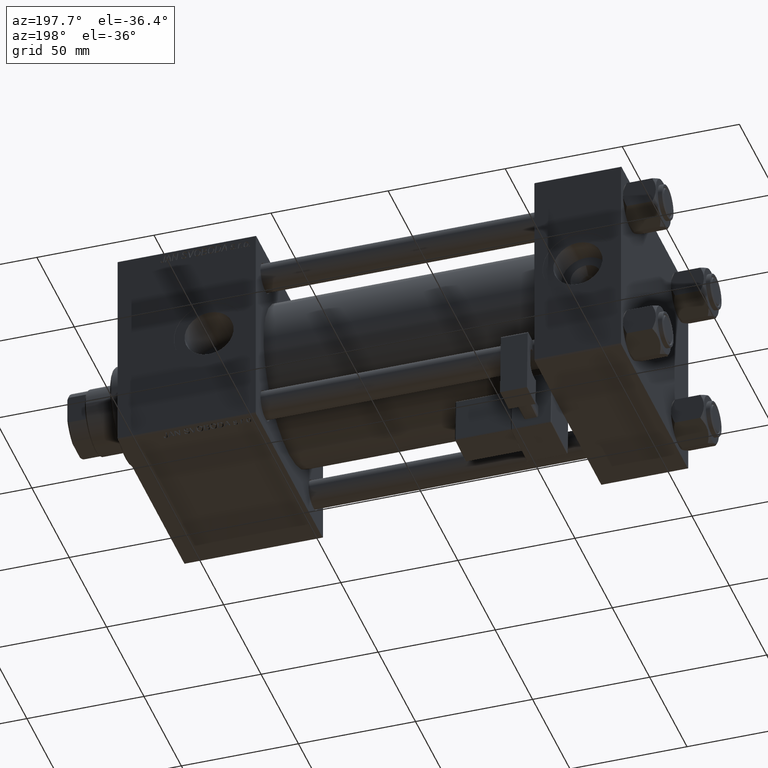
[diagram: clean part render]
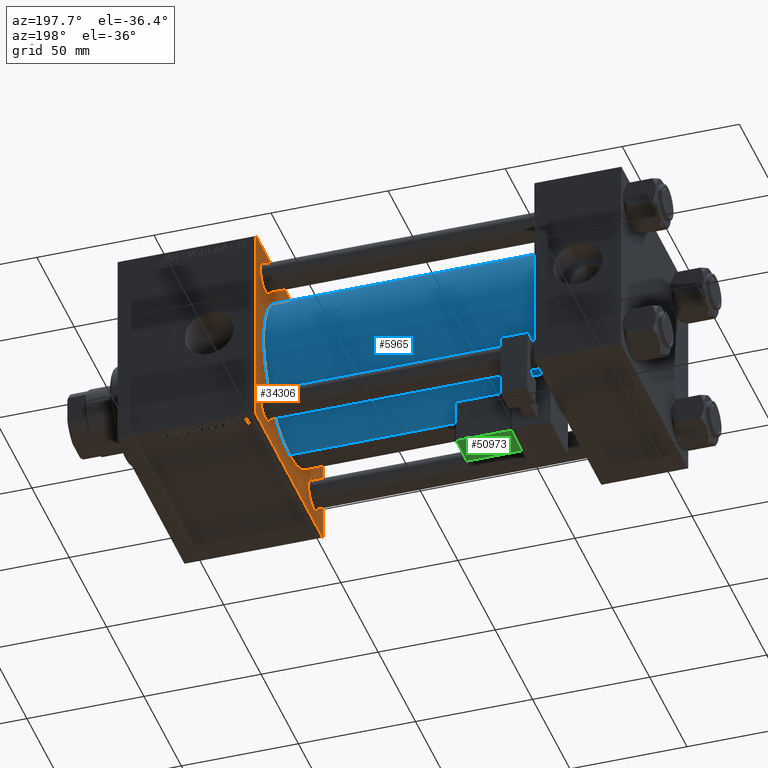
[diagram: same view with three faces highlighted in distinct colors, each labeled with its STEP entity id]
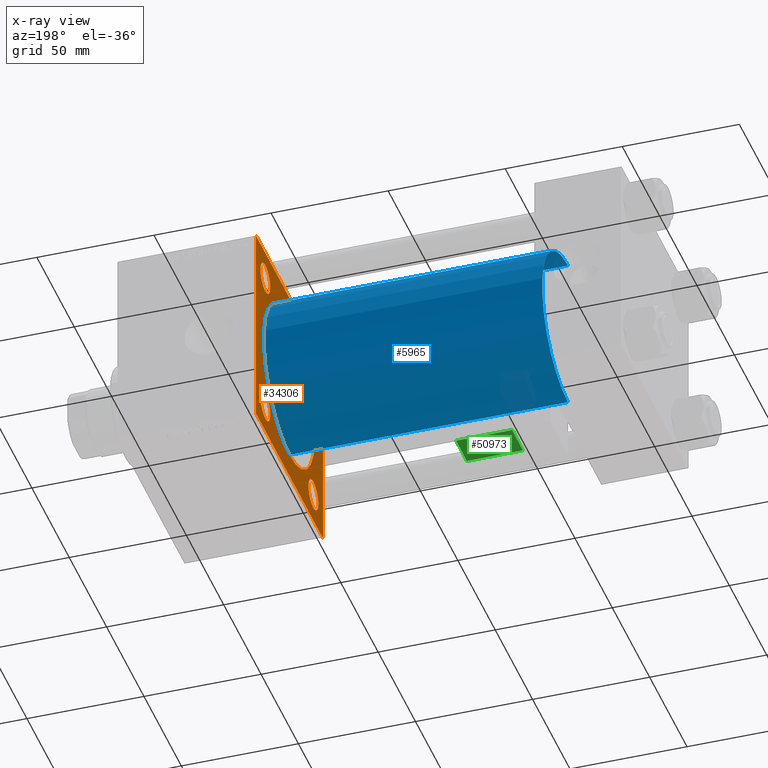
[diagram: x-ray of the same camera — body ghosted, the three highlighted faces saturated]
A machine part, auxiliary view with three faces highlighted in distinct colors.
The next image is the same camera in x-ray (body ghosted, the three faces saturated) — at least one of them is partly hidden behind the body in this view.
Their STEP definitions:

[orange] entity #34306 — the highlighted planar face has unit normal (-1, 0, 0).
#475 = ORIENTED_EDGE ( 'NONE', *, *, #46076, .T. ) ;
#511 = EDGE_CURVE ( 'NONE', #21452, #7140, #11884, .T. ) ;
#803 = DIRECTION ( 'NONE',  ( 1.000000000000000000, 0.000000000000000000, 0.000000000000000000 ) ) ;
#1548 = DIRECTION ( 'NONE',  ( 1.000000000000000000, 0.000000000000000000, 0.000000000000000000 ) ) ;
#1958 = DIRECTION ( 'NONE',  ( 1.000000000000000000, 0.000000000000000000, 0.000000000000000000 ) ) ;
#1994 = ORIENTED_EDGE ( 'NONE', *, *, #30781, .T. ) ;
#2411 = DIRECTION ( 'NONE',  ( 1.000000000000000000, 0.000000000000000000, 0.000000000000000000 ) ) ;
#2585 = ORIENTED_EDGE ( 'NONE', *, *, #33579, .F. ) ;
#2770 = VERTEX_POINT ( 'NONE', #16995 ) ;
#2797 = EDGE_CURVE ( 'NONE', #32809, #31964, #42986, .T. ) ;
#2946 = DIRECTION ( 'NONE',  ( 1.000000000000000000, 0.000000000000000000, 0.000000000000000000 ) ) ;
#3483 = EDGE_LOOP ( 'NONE', ( #50050, #14578 ) ) ;
#3533 = VECTOR ( 'NONE', #31936, 999.9999999999998863 ) ;
#3939 = VECTOR ( 'NONE', #8091, 1000.000000000000114 ) ;
#3946 = ORIENTED_EDGE ( 'NONE', *, *, #13535, .T. ) ;
#4301 = VERTEX_POINT ( 'NONE', #35283 ) ;
#4613 = EDGE_CURVE ( 'NONE', #4301, #11298, #45784, .T. ) ;
#4754 = AXIS2_PLACEMENT_3D ( 'NONE', #27512, #39437, #39971 ) ;
#5135 = CARTESIAN_POINT ( 'NONE',  ( 156.0000000000000000, -32.14999999999997726, -32.15000000000001279 ) ) ;
#5318 = FACE_BOUND ( 'NONE', #5776, .T. ) ;
#5767 = ORIENTED_EDGE ( 'NONE', *, *, #12232, .T. ) ;
#5776 = EDGE_LOOP ( 'NONE', ( #40036, #42409 ) ) ;
#6012 = DIRECTION ( 'NONE',  ( 0.000000000000000000, 0.000000000000000000, 1.000000000000000000 ) ) ;
#6296 = CARTESIAN_POINT ( 'NONE',  ( 156.0000000000000000, -44.75000000000001421, 44.75000000000001421 ) ) ;
#6815 = VERTEX_POINT ( 'NONE', #44533 ) ;
#6889 = AXIS2_PLACEMENT_3D ( 'NONE', #12900, #1548, #50820 ) ;
#7140 = VERTEX_POINT ( 'NONE', #38807 ) ;
#7255 = EDGE_CURVE ( 'NONE', #31964, #32809, #44863, .T. ) ;
#7719 = PLANE ( 'NONE',  #4754 ) ;
#7823 = VERTEX_POINT ( 'NONE', #39343 ) ;
#8091 = DIRECTION ( 'NONE',  ( 0.000000000000000000, 0.7071067811865474617, -0.7071067811865474617 ) ) ;
#8144 = AXIS2_PLACEMENT_3D ( 'NONE', #5135, #803, #18138 ) ;
#8275 = EDGE_CURVE ( 'NONE', #11040, #24836, #8560, .T. ) ;
#8560 = CIRCLE ( 'NONE', #36254, 6.500000000000005329 ) ;
#9942 = DIRECTION ( 'NONE',  ( 0.000000000000000000, 0.000000000000000000, 1.000000000000000000 ) ) ;
#10528 = CARTESIAN_POINT ( 'NONE',  ( 156.0000000000000000, 45.00000000000001421, 45.00000000000000000 ) ) ;
#10720 = FACE_BOUND ( 'NONE', #21532, .T. ) ;
#11040 = VERTEX_POINT ( 'NONE', #51154 ) ;
#11298 = VERTEX_POINT ( 'NONE', #41015 ) ;
#11884 = LINE ( 'NONE', #28932, #3939 ) ;
#12125 = EDGE_CURVE ( 'NONE', #42503, #7823, #46653, .T. ) ;
#12232 = EDGE_CURVE ( 'NONE', #33592, #15785, #31965, .T. ) ;
#12382 = VERTEX_POINT ( 'NONE', #18328 ) ;
#12900 = CARTESIAN_POINT ( 'NONE',  ( 156.0000000000000000, 32.14999999999999147, 32.15000000000000568 ) ) ;
#13535 = EDGE_CURVE ( 'NONE', #6815, #51805, #43374, .T. ) ;
#13998 = CARTESIAN_POINT ( 'NONE',  ( 156.0000000000000000, -32.14999999999997726, -32.15000000000001279 ) ) ;
#14233 = EDGE_LOOP ( 'NONE', ( #16465, #475, #2585, #3946, #15180, #48130, #35888, #25734 ) ) ;
#14477 = ORIENTED_EDGE ( 'NONE', *, *, #29285, .T. ) ;
#14578 = ORIENTED_EDGE ( 'NONE', *, *, #12125, .T. ) ;
#14612 = AXIS2_PLACEMENT_3D ( 'NONE', #36598, #44981, #19820 ) ;
#15180 = ORIENTED_EDGE ( 'NONE', *, *, #24237, .F. ) ;
#15614 = CARTESIAN_POINT ( 'NONE',  ( 156.0000000000000000, -2.602085213965210642E-15, 0.000000000000000000 ) ) ;
#15785 = VERTEX_POINT ( 'NONE', #45432 ) ;
#15886 = CIRCLE ( 'NONE', #46151, 6.500000000000005329 ) ;
#16465 = ORIENTED_EDGE ( 'NONE', *, *, #4613, .T. ) ;
#16638 = VECTOR ( 'NONE', #18985, 1000.000000000000114 ) ;
#16995 = CARTESIAN_POINT ( 'NONE',  ( 156.0000000000000000, -32.14999999999997726, -38.65000000000001990 ) ) ;
#17813 = CARTESIAN_POINT ( 'NONE',  ( 156.0000000000000000, -44.99999999999999289, -44.49999999999997158 ) ) ;
#18138 = DIRECTION ( 'NONE',  ( 0.000000000000000000, 0.000000000000000000, 1.000000000000000000 ) ) ;
#18328 = CARTESIAN_POINT ( 'NONE',  ( 156.0000000000000000, -32.14999999999997726, -25.65000000000000568 ) ) ;
#18392 = DIRECTION ( 'NONE',  ( 0.000000000000000000, 0.000000000000000000, 1.000000000000000000 ) ) ;
#18985 = DIRECTION ( 'NONE',  ( -0.000000000000000000, -0.7071067811865474617, -0.7071067811865474617 ) ) ;
#19214 = CARTESIAN_POINT ( 'NONE',  ( 156.0000000000000000, 45.00000000000001421, 45.00000000000000000 ) ) ;
#19415 = DIRECTION ( 'NONE',  ( 1.000000000000000000, 0.000000000000000000, 0.000000000000000000 ) ) ;
#19743 = LINE ( 'NONE', #19214, #47761 ) ;
#19820 = DIRECTION ( 'NONE',  ( 0.000000000000000000, 0.000000000000000000, -1.000000000000000000 ) ) ;
#20457 = VERTEX_POINT ( 'NONE', #17813 ) ;
#20520 = CARTESIAN_POINT ( 'NONE',  ( 156.0000000000000000, 1.622946243093158675E-15, -34.50000000000000000 ) ) ;
#20799 = CARTESIAN_POINT ( 'NONE',  ( 156.0000000000000000, -32.14999999999997726, 32.15000000000001279 ) ) ;
#21452 = VERTEX_POINT ( 'NONE', #29485 ) ;
#21532 = EDGE_LOOP ( 'NONE', ( #27242, #51202 ) ) ;
#21883 = CIRCLE ( 'NONE', #45216, 6.500000000000005329 ) ;
#22736 = LINE ( 'NONE', #10528, #52095 ) ;
#22942 = VECTOR ( 'NONE', #44738, 1000.000000000000000 ) ;
#23683 = AXIS2_PLACEMENT_3D ( 'NONE', #47430, #1958, #30088 ) ;
#24237 = EDGE_CURVE ( 'NONE', #21452, #51805, #22736, .T. ) ;
#24836 = VERTEX_POINT ( 'NONE', #52373 ) ;
#25212 = DIRECTION ( 'NONE',  ( 0.000000000000000000, -1.000000000000000000, 0.000000000000000000 ) ) ;
#25734 = ORIENTED_EDGE ( 'NONE', *, *, #29346, .T. ) ;
#26526 = DIRECTION ( 'NONE',  ( 0.000000000000000000, -1.000000000000000000, -1.541976423090495140E-16 ) ) ;
#27021 = VERTEX_POINT ( 'NONE', #49799 ) ;
#27088 = LINE ( 'NONE', #27350, #3533 ) ;
#27242 = ORIENTED_EDGE ( 'NONE', *, *, #2797, .T. ) ;
#27350 = CARTESIAN_POINT ( 'NONE',  ( 156.0000000000000000, -44.74999999999968736, -44.75000000000031264 ) ) ;
#27512 = CARTESIAN_POINT ( 'NONE',  ( 156.0000000000000000, 0.000000000000000000, 0.000000000000000000 ) ) ;
#27544 = DIRECTION ( 'NONE',  ( 0.000000000000000000, 0.000000000000000000, -1.000000000000000000 ) ) ;
#28231 = CARTESIAN_POINT ( 'NONE',  ( 156.0000000000000000, -45.00000000000000000, 44.99999999999998579 ) ) ;
#28932 = CARTESIAN_POINT ( 'NONE',  ( 156.0000000000000000, 44.75000000000001421, 44.75000000000001421 ) ) ;
#29180 = VECTOR ( 'NONE', #30922, 1000.000000000000114 ) ;
#29285 = EDGE_CURVE ( 'NONE', #15785, #33592, #30501, .T. ) ;
#29346 = EDGE_CURVE ( 'NONE', #27021, #4301, #50680, .T. ) ;
#29485 = CARTESIAN_POINT ( 'NONE',  ( 156.0000000000000000, 44.50000000000001421, 45.00000000000000000 ) ) ;
#29819 = CARTESIAN_POINT ( 'NONE',  ( 156.0000000000000000, 32.14999999999999147, 25.65000000000000213 ) ) ;
#29996 = DIRECTION ( 'NONE',  ( 0.000000000000000000, 0.000000000000000000, 1.000000000000000000 ) ) ;
#30088 = DIRECTION ( 'NONE',  ( 0.000000000000000000, 0.000000000000000000, 1.000000000000000000 ) ) ;
#30501 = CIRCLE ( 'NONE', #53007, 6.499999999999999112 ) ;
#30781 = EDGE_CURVE ( 'NONE', #12382, #2770, #15886, .T. ) ;
#30922 = DIRECTION ( 'NONE',  ( -0.000000000000000000, 0.7071067811865474617, 0.7071067811865474617 ) ) ;
#31753 = EDGE_CURVE ( 'NONE', #2770, #12382, #52278, .T. ) ;
#31936 = DIRECTION ( 'NONE',  ( 0.000000000000000000, -0.7071067811865525687, 0.7071067811865425767 ) ) ;
#31964 = VERTEX_POINT ( 'NONE', #20520 ) ;
#31965 = CIRCLE ( 'NONE', #6889, 6.499999999999999112 ) ;
#32020 = EDGE_LOOP ( 'NONE', ( #1994, #46523 ) ) ;
#32809 = VERTEX_POINT ( 'NONE', #40612 ) ;
#33579 = EDGE_CURVE ( 'NONE', #6815, #20457, #48816, .T. ) ;
#33592 = VERTEX_POINT ( 'NONE', #29819 ) ;
#33599 = CARTESIAN_POINT ( 'NONE',  ( 156.0000000000000000, 45.00000000000001421, -45.00000000000000000 ) ) ;
#34306 = ADVANCED_FACE ( 'NONE', ( #5318, #38341, #35368, #44556, #10720, #48623 ), #7719, .T. ) ;
#34983 = DIRECTION ( 'NONE',  ( 1.000000000000000000, 0.000000000000000000, 0.000000000000000000 ) ) ;
#35257 = VECTOR ( 'NONE', #25212, 1000.000000000000000 ) ;
#35283 = CARTESIAN_POINT ( 'NONE',  ( 156.0000000000000000, 44.50000000000001421, -45.00000000000000000 ) ) ;
#35368 = FACE_BOUND ( 'NONE', #3483, .T. ) ;
#35888 = ORIENTED_EDGE ( 'NONE', *, *, #46105, .T. ) ;
#36235 = DIRECTION ( 'NONE',  ( 0.000000000000000000, 0.000000000000000000, 1.000000000000000000 ) ) ;
#36254 = AXIS2_PLACEMENT_3D ( 'NONE', #20799, #37842, #29996 ) ;
#36598 = CARTESIAN_POINT ( 'NONE',  ( 156.0000000000000000, -2.602085213965210642E-15, 0.000000000000000000 ) ) ;
#37842 = DIRECTION ( 'NONE',  ( 1.000000000000000000, 0.000000000000000000, 0.000000000000000000 ) ) ;
#37972 = AXIS2_PLACEMENT_3D ( 'NONE', #52237, #2946, #36235 ) ;
#38341 = FACE_BOUND ( 'NONE', #46065, .T. ) ;
#38533 = CARTESIAN_POINT ( 'NONE',  ( 156.0000000000000000, 32.14999999999999147, -38.65000000000001279 ) ) ;
#38807 = CARTESIAN_POINT ( 'NONE',  ( 156.0000000000000000, 45.00000000000001421, 44.50000000000000000 ) ) ;
#39343 = CARTESIAN_POINT ( 'NONE',  ( 156.0000000000000000, 32.14999999999999147, -25.64999999999999858 ) ) ;
#39437 = DIRECTION ( 'NONE',  ( -1.000000000000000000, 0.000000000000000000, -0.000000000000000000 ) ) ;
#39971 = DIRECTION ( 'NONE',  ( -0.000000000000000000, 0.000000000000000000, 1.000000000000000000 ) ) ;
#40036 = ORIENTED_EDGE ( 'NONE', *, *, #8275, .T. ) ;
#40612 = CARTESIAN_POINT ( 'NONE',  ( 156.0000000000000000, -2.602085213965210642E-15, 34.50000000000000000 ) ) ;
#40626 = CARTESIAN_POINT ( 'NONE',  ( 156.0000000000000000, 44.75000000000000000, -44.75000000000000000 ) ) ;
#41015 = CARTESIAN_POINT ( 'NONE',  ( 156.0000000000000000, -44.49999999999995737, -45.00000000000000000 ) ) ;
#42156 = DIRECTION ( 'NONE',  ( 1.000000000000000000, 0.000000000000000000, 0.000000000000000000 ) ) ;
#42409 = ORIENTED_EDGE ( 'NONE', *, *, #52678, .T. ) ;
#42503 = VERTEX_POINT ( 'NONE', #38533 ) ;
#42706 = CARTESIAN_POINT ( 'NONE',  ( 156.0000000000000000, -44.50000000000000000, 44.99999999999998579 ) ) ;
#42986 = CIRCLE ( 'NONE', #46419, 34.50000000000000000 ) ;
#43374 = LINE ( 'NONE', #6296, #29180 ) ;
#43580 = CIRCLE ( 'NONE', #23683, 6.500000000000005329 ) ;
#43589 = DIRECTION ( 'NONE',  ( 0.000000000000000000, 0.000000000000000000, -1.000000000000000000 ) ) ;
#44533 = CARTESIAN_POINT ( 'NONE',  ( 156.0000000000000000, -45.00000000000000000, 44.50000000000001421 ) ) ;
#44556 = FACE_BOUND ( 'NONE', #32020, .T. ) ;
#44738 = DIRECTION ( 'NONE',  ( 0.000000000000000000, 7.709882115452478166E-17, -1.000000000000000000 ) ) ;
#44863 = CIRCLE ( 'NONE', #14612, 34.50000000000000000 ) ;
#44981 = DIRECTION ( 'NONE',  ( 1.000000000000000000, 0.000000000000000000, 0.000000000000000000 ) ) ;
#45216 = AXIS2_PLACEMENT_3D ( 'NONE', #51701, #2411, #18392 ) ;
#45432 = CARTESIAN_POINT ( 'NONE',  ( 156.0000000000000000, 32.14999999999999147, 38.65000000000001279 ) ) ;
#45784 = LINE ( 'NONE', #33599, #35257 ) ;
#46065 = EDGE_LOOP ( 'NONE', ( #14477, #5767 ) ) ;
#46076 = EDGE_CURVE ( 'NONE', #11298, #20457, #27088, .T. ) ;
#46105 = EDGE_CURVE ( 'NONE', #7140, #27021, #19743, .T. ) ;
#46151 = AXIS2_PLACEMENT_3D ( 'NONE', #13998, #42156, #9942 ) ;
#46419 = AXIS2_PLACEMENT_3D ( 'NONE', #15614, #19415, #27544 ) ;
#46523 = ORIENTED_EDGE ( 'NONE', *, *, #31753, .T. ) ;
#46619 = CARTESIAN_POINT ( 'NONE',  ( 156.0000000000000000, 32.14999999999999147, 32.15000000000000568 ) ) ;
#46653 = CIRCLE ( 'NONE', #37972, 6.500000000000005329 ) ;
#47430 = CARTESIAN_POINT ( 'NONE',  ( 156.0000000000000000, -32.14999999999997726, 32.15000000000001279 ) ) ;
#47761 = VECTOR ( 'NONE', #43589, 1000.000000000000000 ) ;
#48130 = ORIENTED_EDGE ( 'NONE', *, *, #511, .T. ) ;
#48623 = FACE_OUTER_BOUND ( 'NONE', #14233, .T. ) ;
#48816 = LINE ( 'NONE', #28231, #22942 ) ;
#49799 = CARTESIAN_POINT ( 'NONE',  ( 156.0000000000000000, 45.00000000000001421, -44.49999999999997158 ) ) ;
#50050 = ORIENTED_EDGE ( 'NONE', *, *, #50641, .T. ) ;
#50641 = EDGE_CURVE ( 'NONE', #7823, #42503, #21883, .T. ) ;
#50680 = LINE ( 'NONE', #40626, #16638 ) ;
#50820 = DIRECTION ( 'NONE',  ( 0.000000000000000000, 0.000000000000000000, 1.000000000000000000 ) ) ;
#51154 = CARTESIAN_POINT ( 'NONE',  ( 156.0000000000000000, -32.14999999999997726, 38.65000000000002700 ) ) ;
#51202 = ORIENTED_EDGE ( 'NONE', *, *, #7255, .T. ) ;
#51701 = CARTESIAN_POINT ( 'NONE',  ( 156.0000000000000000, 32.14999999999999147, -32.15000000000000568 ) ) ;
#51805 = VERTEX_POINT ( 'NONE', #42706 ) ;
#52095 = VECTOR ( 'NONE', #26526, 1000.000000000000000 ) ;
#52237 = CARTESIAN_POINT ( 'NONE',  ( 156.0000000000000000, 32.14999999999999147, -32.15000000000000568 ) ) ;
#52278 = CIRCLE ( 'NONE', #8144, 6.500000000000005329 ) ;
#52373 = CARTESIAN_POINT ( 'NONE',  ( 156.0000000000000000, -32.14999999999997726, 25.65000000000000213 ) ) ;
#52678 = EDGE_CURVE ( 'NONE', #24836, #11040, #43580, .T. ) ;
#53007 = AXIS2_PLACEMENT_3D ( 'NONE', #46619, #34983, #6012 ) ;

[blue] entity #5965 — the highlighted cylindrical surface (partial cylindrical patch) has radius 34.5 mm, axis along (-1, -0, -0).
#14 = FACE_OUTER_BOUND ( 'NONE', #19888, .T. ) ;
#288 = DIRECTION ( 'NONE',  ( -1.000000000000000000, -0.000000000000000000, -0.000000000000000000 ) ) ;
#437 = VERTEX_POINT ( 'NONE', #23567 ) ;
#3367 = ORIENTED_EDGE ( 'NONE', *, *, #7444, .T. ) ;
#4165 = AXIS2_PLACEMENT_3D ( 'NONE', #12193, #288, #8407 ) ;
#5965 = ADVANCED_FACE ( 'NONE', ( #14 ), #45769, .T. ) ;
#7255 = EDGE_CURVE ( 'NONE', #31964, #32809, #44863, .T. ) ;
#7444 = EDGE_CURVE ( 'NONE', #31964, #437, #19164, .T. ) ;
#7856 = ORIENTED_EDGE ( 'NONE', *, *, #7255, .F. ) ;
#8407 = DIRECTION ( 'NONE',  ( 0.000000000000000000, 0.000000000000000000, 1.000000000000000000 ) ) ;
#11512 = VERTEX_POINT ( 'NONE', #27189 ) ;
#12193 = CARTESIAN_POINT ( 'NONE',  ( 156.0000000000000000, -2.602085213965210642E-15, 0.000000000000000000 ) ) ;
#14612 = AXIS2_PLACEMENT_3D ( 'NONE', #36598, #44981, #19820 ) ;
#14828 = CARTESIAN_POINT ( 'NONE',  ( 156.0000000000000000, 1.622946243093158675E-15, -34.50000000000000000 ) ) ;
#15717 = CARTESIAN_POINT ( 'NONE',  ( 37.00000000000000711, -2.602085213965210642E-15, 0.000000000000000000 ) ) ;
#16211 = DIRECTION ( 'NONE',  ( -1.000000000000000000, -0.000000000000000000, -0.000000000000000000 ) ) ;
#16285 = VECTOR ( 'NONE', #31881, 1000.000000000000000 ) ;
#19164 = LINE ( 'NONE', #14828, #16285 ) ;
#19820 = DIRECTION ( 'NONE',  ( 0.000000000000000000, 0.000000000000000000, -1.000000000000000000 ) ) ;
#19888 = EDGE_LOOP ( 'NONE', ( #7856, #3367, #47087, #43056 ) ) ;
#20520 = CARTESIAN_POINT ( 'NONE',  ( 156.0000000000000000, 1.622946243093158675E-15, -34.50000000000000000 ) ) ;
#23567 = CARTESIAN_POINT ( 'NONE',  ( 37.00000000000000711, 1.622946243093158675E-15, -34.50000000000000000 ) ) ;
#24000 = EDGE_CURVE ( 'NONE', #437, #11512, #52943, .T. ) ;
#24360 = CARTESIAN_POINT ( 'NONE',  ( 156.0000000000000000, -2.602085213965210642E-15, 34.50000000000000000 ) ) ;
#27189 = CARTESIAN_POINT ( 'NONE',  ( 37.00000000000000711, -2.602085213965210642E-15, 34.50000000000000000 ) ) ;
#30469 = AXIS2_PLACEMENT_3D ( 'NONE', #15717, #40894, #40105 ) ;
#31881 = DIRECTION ( 'NONE',  ( -1.000000000000000000, -0.000000000000000000, -0.000000000000000000 ) ) ;
#31964 = VERTEX_POINT ( 'NONE', #20520 ) ;
#32809 = VERTEX_POINT ( 'NONE', #40612 ) ;
#36598 = CARTESIAN_POINT ( 'NONE',  ( 156.0000000000000000, -2.602085213965210642E-15, 0.000000000000000000 ) ) ;
#37596 = LINE ( 'NONE', #24360, #46415 ) ;
#37899 = EDGE_CURVE ( 'NONE', #32809, #11512, #37596, .T. ) ;
#40105 = DIRECTION ( 'NONE',  ( 0.000000000000000000, 0.000000000000000000, 1.000000000000000000 ) ) ;
#40612 = CARTESIAN_POINT ( 'NONE',  ( 156.0000000000000000, -2.602085213965210642E-15, 34.50000000000000000 ) ) ;
#40894 = DIRECTION ( 'NONE',  ( 1.000000000000000000, -0.000000000000000000, 0.000000000000000000 ) ) ;
#43056 = ORIENTED_EDGE ( 'NONE', *, *, #37899, .F. ) ;
#44863 = CIRCLE ( 'NONE', #14612, 34.50000000000000000 ) ;
#44981 = DIRECTION ( 'NONE',  ( 1.000000000000000000, 0.000000000000000000, 0.000000000000000000 ) ) ;
#45769 = CYLINDRICAL_SURFACE ( 'NONE', #4165, 34.50000000000000000 ) ;
#46415 = VECTOR ( 'NONE', #16211, 1000.000000000000000 ) ;
#47087 = ORIENTED_EDGE ( 'NONE', *, *, #24000, .T. ) ;
#52943 = CIRCLE ( 'NONE', #30469, 34.50000000000000000 ) ;

[green] entity #50973 — the highlighted planar face has unit normal (-0, -0.0353, 0.9994).
#392 = DIRECTION ( 'NONE',  ( -1.000000000000000000, 0.000000000000000000, -1.334402673828313339E-16 ) ) ;
#2126 = LINE ( 'NONE', #26489, #11087 ) ;
#6220 = CARTESIAN_POINT ( 'NONE',  ( 9.250000000000005329, -21.75000000000000000, 2.000000000000006661 ) ) ;
#6451 = EDGE_CURVE ( 'NONE', #27811, #29619, #2126, .T. ) ;
#11087 = VECTOR ( 'NONE', #34610, 1000.000000000000000 ) ;
#12400 = VECTOR ( 'NONE', #20186, 1000.000000000000000 ) ;
#18855 = CARTESIAN_POINT ( 'NONE',  ( 33.75000000000000000, -21.24999999999999645, 2.000000000000010214 ) ) ;
#20186 = DIRECTION ( 'NONE',  ( 1.000000000000000000, -0.000000000000000000, 1.334402673828313339E-16 ) ) ;
#23321 = CARTESIAN_POINT ( 'NONE',  ( 9.250000000000005329, -35.75000000000000000, 2.000000000000005329 ) ) ;
#23466 = CARTESIAN_POINT ( 'NONE',  ( 33.25000000000000000, -36.25000000000000000, 2.000000000000008438 ) ) ;
#25108 = ORIENTED_EDGE ( 'NONE', *, *, #51898, .T. ) ;
#25829 = VERTEX_POINT ( 'NONE', #41241 ) ;
#26192 = AXIS2_PLACEMENT_3D ( 'NONE', #18855, #35374, #51905 ) ;
#26489 = CARTESIAN_POINT ( 'NONE',  ( 9.250000000000005329, -21.24999999999999645, 2.000000000000007105 ) ) ;
#27174 = CARTESIAN_POINT ( 'NONE',  ( 33.25000000000000000, -21.75000000000000000, 2.000000000000010214 ) ) ;
#27811 = VERTEX_POINT ( 'NONE', #23321 ) ;
#28314 = CARTESIAN_POINT ( 'NONE',  ( 33.75000000000000000, -21.75000000000000000, 2.000000000000010214 ) ) ;
#28448 = EDGE_CURVE ( 'NONE', #32522, #25829, #44032, .T. ) ;
#29619 = VERTEX_POINT ( 'NONE', #6220 ) ;
#32522 = VERTEX_POINT ( 'NONE', #27174 ) ;
#33088 = VECTOR ( 'NONE', #392, 1000.000000000000000 ) ;
#34573 = FACE_OUTER_BOUND ( 'NONE', #48465, .T. ) ;
#34610 = DIRECTION ( 'NONE',  ( -1.543213096464132036E-32, 1.000000000000000000, 1.156482317317871725E-16 ) ) ;
#35374 = DIRECTION ( 'NONE',  ( -1.334402673828313339E-16, -1.156482317317871725E-16, 1.000000000000000000 ) ) ;
#35643 = LINE ( 'NONE', #36945, #33088 ) ;
#36172 = DIRECTION ( 'NONE',  ( 5.473822126268816683E-48, -1.000000000000000000, -1.156482317317871725E-16 ) ) ;
#36945 = CARTESIAN_POINT ( 'NONE',  ( 33.75000000000000000, -35.75000000000000000, 2.000000000000008438 ) ) ;
#40329 = ORIENTED_EDGE ( 'NONE', *, *, #6451, .T. ) ;
#41241 = CARTESIAN_POINT ( 'NONE',  ( 33.25000000000000000, -35.75000000000000000, 2.000000000000008438 ) ) ;
#44032 = LINE ( 'NONE', #23466, #49506 ) ;
#44266 = ORIENTED_EDGE ( 'NONE', *, *, #28448, .T. ) ;
#48465 = EDGE_LOOP ( 'NONE', ( #44266, #52211, #40329, #25108 ) ) ;
#49506 = VECTOR ( 'NONE', #36172, 1000.000000000000000 ) ;
#50973 = ADVANCED_FACE ( 'NONE', ( #34573 ), #51096, .F. ) ;
#51096 = PLANE ( 'NONE',  #26192 ) ;
#51200 = EDGE_CURVE ( 'NONE', #25829, #27811, #35643, .T. ) ;
#51898 = EDGE_CURVE ( 'NONE', #29619, #32522, #52448, .T. ) ;
#51905 = DIRECTION ( 'NONE',  ( 1.000000000000000000, 0.000000000000000000, 1.334402673828313339E-16 ) ) ;
#52211 = ORIENTED_EDGE ( 'NONE', *, *, #51200, .T. ) ;
#52448 = LINE ( 'NONE', #28314, #12400 ) ;